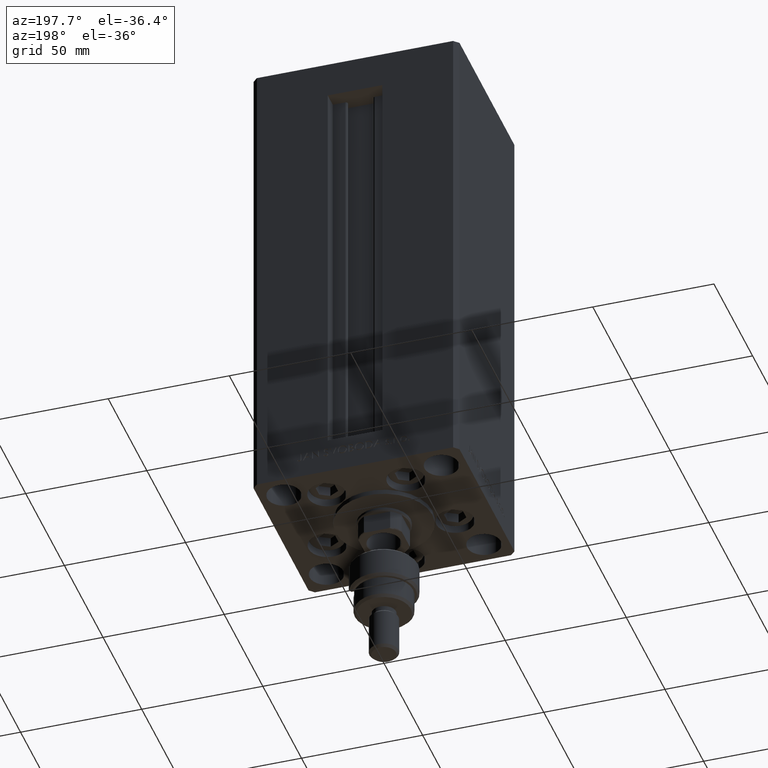
[diagram: clean part render]
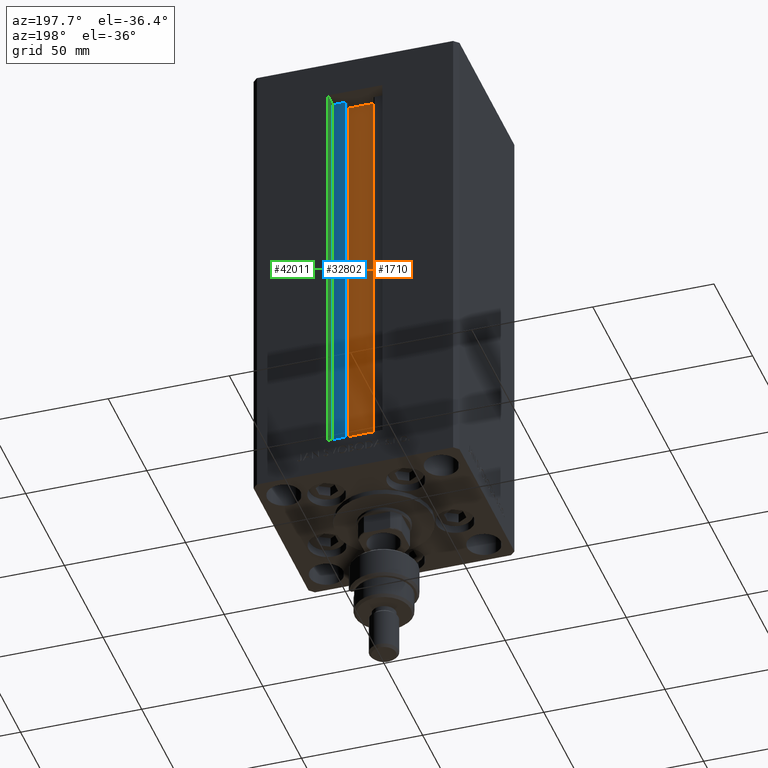
[diagram: same view with three faces highlighted in distinct colors, each labeled with its STEP entity id]
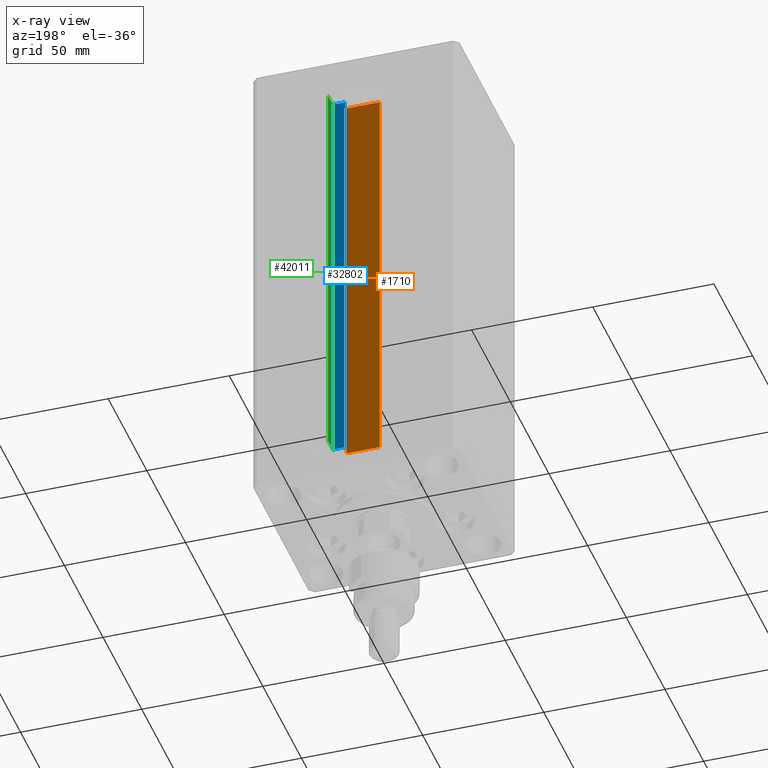
[diagram: x-ray of the same camera — body ghosted, the three highlighted faces saturated]
A machine part, auxiliary view with three faces highlighted in distinct colors.
The next image is the same camera in x-ray (body ghosted, the three faces saturated) — at least one of them is partly hidden behind the body in this view.
Their STEP definitions:

[orange] entity #1710 — the highlighted planar face has unit normal (0, -1, 0).
#17 = DIRECTION ( 'NONE',  ( 0.000000000000000000, -1.000000000000000000, -0.000000000000000000 ) ) ;
#1710 = ADVANCED_FACE ( 'NONE', ( #45937 ), #22978, .F. ) ;
#1740 = CARTESIAN_POINT ( 'NONE',  ( -6.876153656360465938, 26.99999999999986855, 0.000000000000000000 ) ) ;
#3244 = LINE ( 'NONE', #47507, #16710 ) ;
#3381 = VERTEX_POINT ( 'NONE', #42686 ) ;
#3614 = EDGE_CURVE ( 'NONE', #3381, #49777, #25180, .T. ) ;
#4675 = ORIENTED_EDGE ( 'NONE', *, *, #36595, .T. ) ;
#8498 = DIRECTION ( 'NONE',  ( 1.000000000000000000, -0.000000000000000000, -0.000000000000000000 ) ) ;
#8797 = VERTEX_POINT ( 'NONE', #1740 ) ;
#9803 = EDGE_LOOP ( 'NONE', ( #43341, #28689, #4675, #45426 ) ) ;
#10227 = CARTESIAN_POINT ( 'NONE',  ( -6.876153656360465938, 26.99999999999986855, 168.5000000000000000 ) ) ;
#16710 = VECTOR ( 'NONE', #8498, 1000.000000000000000 ) ;
#17803 = CARTESIAN_POINT ( 'NONE',  ( 0.000000000000000000, 26.99999999999986855, 168.5000000000000000 ) ) ;
#18167 = VERTEX_POINT ( 'NONE', #41749 ) ;
#22978 = PLANE ( 'NONE',  #43659 ) ;
#23700 = DIRECTION ( 'NONE',  ( -0.000000000000000000, -0.000000000000000000, 1.000000000000000000 ) ) ;
#24247 = VECTOR ( 'NONE', #41495, 1000.000000000000000 ) ;
#25180 = LINE ( 'NONE', #17803, #24247 ) ;
#28286 = CARTESIAN_POINT ( 'NONE',  ( -6.876153656360465938, 26.99999999999986855, 0.000000000000000000 ) ) ;
#28689 = ORIENTED_EDGE ( 'NONE', *, *, #45183, .F. ) ;
#31346 = CARTESIAN_POINT ( 'NONE',  ( 6.876153656360465938, 26.99999999999986855, 0.000000000000000000 ) ) ;
#31856 = LINE ( 'NONE', #28286, #43268 ) ;
#34192 = DIRECTION ( 'NONE',  ( 0.000000000000000000, 0.000000000000000000, -1.000000000000000000 ) ) ;
#34427 = EDGE_CURVE ( 'NONE', #18167, #3381, #39247, .T. ) ;
#36595 = EDGE_CURVE ( 'NONE', #8797, #49777, #31856, .T. ) ;
#38521 = CARTESIAN_POINT ( 'NONE',  ( 6.876153656360465938, 26.99999999999986855, 0.000000000000000000 ) ) ;
#39000 = DIRECTION ( 'NONE',  ( -0.000000000000000000, -0.000000000000000000, 1.000000000000000000 ) ) ;
#39247 = LINE ( 'NONE', #31346, #48086 ) ;
#41495 = DIRECTION ( 'NONE',  ( -1.000000000000000000, 0.000000000000000000, 0.000000000000000000 ) ) ;
#41749 = CARTESIAN_POINT ( 'NONE',  ( 6.876153656360465938, 26.99999999999986855, 0.000000000000000000 ) ) ;
#42686 = CARTESIAN_POINT ( 'NONE',  ( 6.876153656360465938, 26.99999999999986855, 168.5000000000000000 ) ) ;
#43268 = VECTOR ( 'NONE', #23700, 1000.000000000000000 ) ;
#43341 = ORIENTED_EDGE ( 'NONE', *, *, #34427, .F. ) ;
#43659 = AXIS2_PLACEMENT_3D ( 'NONE', #38521, #17, #34192 ) ;
#45183 = EDGE_CURVE ( 'NONE', #8797, #18167, #3244, .T. ) ;
#45426 = ORIENTED_EDGE ( 'NONE', *, *, #3614, .F. ) ;
#45937 = FACE_OUTER_BOUND ( 'NONE', #9803, .T. ) ;
#47507 = CARTESIAN_POINT ( 'NONE',  ( 6.876153656360465938, 26.99999999999986855, 0.000000000000000000 ) ) ;
#48086 = VECTOR ( 'NONE', #39000, 1000.000000000000000 ) ;
#49777 = VERTEX_POINT ( 'NONE', #10227 ) ;

[blue] entity #32802 — the highlighted planar face has unit normal (0, -1, 0).
#1538 = ORIENTED_EDGE ( 'NONE', *, *, #3638, .T. ) ;
#3100 = VECTOR ( 'NONE', #21375, 1000.000000000000000 ) ;
#3432 = CARTESIAN_POINT ( 'NONE',  ( 6.183333333333999704, 30.99999999999999289, 0.000000000000000000 ) ) ;
#3638 = EDGE_CURVE ( 'NONE', #30700, #5601, #5806, .T. ) ;
#4696 = LINE ( 'NONE', #49957, #13762 ) ;
#5601 = VERTEX_POINT ( 'NONE', #24624 ) ;
#5806 = LINE ( 'NONE', #30008, #3100 ) ;
#6011 = CARTESIAN_POINT ( 'NONE',  ( 6.183333333333999704, 30.99999999999999289, 0.000000000000000000 ) ) ;
#8955 = EDGE_CURVE ( 'NONE', #30700, #50088, #4696, .T. ) ;
#11628 = CARTESIAN_POINT ( 'NONE',  ( 11.25000000000000000, 30.99999999999999289, 168.5000000000000000 ) ) ;
#12346 = LINE ( 'NONE', #39376, #31814 ) ;
#13762 = VECTOR ( 'NONE', #30812, 1000.000000000000000 ) ;
#13879 = EDGE_CURVE ( 'NONE', #50088, #29944, #12346, .T. ) ;
#18487 = DIRECTION ( 'NONE',  ( 0.000000000000000000, -1.000000000000000000, 0.000000000000000000 ) ) ;
#21375 = DIRECTION ( 'NONE',  ( -0.000000000000000000, -0.000000000000000000, 1.000000000000000000 ) ) ;
#21557 = EDGE_LOOP ( 'NONE', ( #36128, #25656, #1538, #33935 ) ) ;
#21819 = PLANE ( 'NONE',  #23609 ) ;
#23145 = CARTESIAN_POINT ( 'NONE',  ( 11.25000000000000000, 30.99999999999999289, 0.000000000000000000 ) ) ;
#23609 = AXIS2_PLACEMENT_3D ( 'NONE', #6011, #18487, #34039 ) ;
#24624 = CARTESIAN_POINT ( 'NONE',  ( 6.183333333333999704, 30.99999999999999289, 168.5000000000000000 ) ) ;
#25656 = ORIENTED_EDGE ( 'NONE', *, *, #8955, .F. ) ;
#29944 = VERTEX_POINT ( 'NONE', #11628 ) ;
#30008 = CARTESIAN_POINT ( 'NONE',  ( 6.183333333333999704, 30.99999999999999289, 0.000000000000000000 ) ) ;
#30700 = VERTEX_POINT ( 'NONE', #3432 ) ;
#30812 = DIRECTION ( 'NONE',  ( 1.000000000000000000, 0.000000000000000000, 0.000000000000000000 ) ) ;
#31814 = VECTOR ( 'NONE', #46800, 1000.000000000000000 ) ;
#32471 = LINE ( 'NONE', #48796, #36248 ) ;
#32802 = ADVANCED_FACE ( 'NONE', ( #36612 ), #21819, .F. ) ;
#33935 = ORIENTED_EDGE ( 'NONE', *, *, #44381, .F. ) ;
#34039 = DIRECTION ( 'NONE',  ( 0.000000000000000000, -0.000000000000000000, -1.000000000000000000 ) ) ;
#36128 = ORIENTED_EDGE ( 'NONE', *, *, #13879, .F. ) ;
#36248 = VECTOR ( 'NONE', #48551, 1000.000000000000000 ) ;
#36612 = FACE_OUTER_BOUND ( 'NONE', #21557, .T. ) ;
#39376 = CARTESIAN_POINT ( 'NONE',  ( 11.25000000000000000, 30.99999999999999289, 0.000000000000000000 ) ) ;
#44381 = EDGE_CURVE ( 'NONE', #29944, #5601, #32471, .T. ) ;
#46800 = DIRECTION ( 'NONE',  ( -0.000000000000000000, -0.000000000000000000, 1.000000000000000000 ) ) ;
#48551 = DIRECTION ( 'NONE',  ( -1.000000000000000000, 0.000000000000000000, 0.000000000000000000 ) ) ;
#48796 = CARTESIAN_POINT ( 'NONE',  ( 0.000000000000000000, 30.99999999999999289, 168.5000000000000000 ) ) ;
#49957 = CARTESIAN_POINT ( 'NONE',  ( 6.183333333333999704, 30.99999999999999289, 0.000000000000000000 ) ) ;
#50088 = VERTEX_POINT ( 'NONE', #23145 ) ;

[green] entity #42011 — the highlighted planar face has unit normal (1, 0, 0).
#5037 = DIRECTION ( 'NONE',  ( -0.000000000000000000, -1.000000000000000000, 0.000000000000000000 ) ) ;
#5095 = EDGE_LOOP ( 'NONE', ( #12313, #47875, #44565, #6938 ) ) ;
#6938 = ORIENTED_EDGE ( 'NONE', *, *, #8095, .F. ) ;
#8095 = EDGE_CURVE ( 'NONE', #32640, #29944, #29006, .T. ) ;
#9899 = VECTOR ( 'NONE', #41406, 1000.000000000000000 ) ;
#11628 = CARTESIAN_POINT ( 'NONE',  ( 11.25000000000000000, 30.99999999999999289, 168.5000000000000000 ) ) ;
#12313 = ORIENTED_EDGE ( 'NONE', *, *, #24251, .F. ) ;
#12346 = LINE ( 'NONE', #39376, #31814 ) ;
#13879 = EDGE_CURVE ( 'NONE', #50088, #29944, #12346, .T. ) ;
#15563 = CARTESIAN_POINT ( 'NONE',  ( 11.25000000000000000, 30.99999999999999289, 0.000000000000000000 ) ) ;
#15958 = EDGE_CURVE ( 'NONE', #50088, #48452, #30688, .T. ) ;
#19806 = VECTOR ( 'NONE', #21426, 1000.000000000000000 ) ;
#21426 = DIRECTION ( 'NONE',  ( -0.000000000000000000, -0.000000000000000000, 1.000000000000000000 ) ) ;
#23145 = CARTESIAN_POINT ( 'NONE',  ( 11.25000000000000000, 30.99999999999999289, 0.000000000000000000 ) ) ;
#23460 = DIRECTION ( 'NONE',  ( 0.000000000000000000, 0.000000000000000000, -1.000000000000000000 ) ) ;
#24251 = EDGE_CURVE ( 'NONE', #48452, #32640, #24722, .T. ) ;
#24722 = LINE ( 'NONE', #36717, #19806 ) ;
#27524 = VECTOR ( 'NONE', #5037, 1000.000000000000000 ) ;
#29006 = LINE ( 'NONE', #47626, #27524 ) ;
#29944 = VERTEX_POINT ( 'NONE', #11628 ) ;
#30620 = PLANE ( 'NONE',  #34542 ) ;
#30688 = LINE ( 'NONE', #34256, #9899 ) ;
#31814 = VECTOR ( 'NONE', #46800, 1000.000000000000000 ) ;
#32640 = VERTEX_POINT ( 'NONE', #45590 ) ;
#34256 = CARTESIAN_POINT ( 'NONE',  ( 11.25000000000000000, 30.99999999999999289, 0.000000000000000000 ) ) ;
#34542 = AXIS2_PLACEMENT_3D ( 'NONE', #15563, #50015, #23460 ) ;
#36717 = CARTESIAN_POINT ( 'NONE',  ( 11.25000000000000000, 37.50000000000000000, 0.000000000000000000 ) ) ;
#39376 = CARTESIAN_POINT ( 'NONE',  ( 11.25000000000000000, 30.99999999999999289, 0.000000000000000000 ) ) ;
#41406 = DIRECTION ( 'NONE',  ( 0.000000000000000000, 1.000000000000000000, 0.000000000000000000 ) ) ;
#42011 = ADVANCED_FACE ( 'NONE', ( #46185 ), #30620, .F. ) ;
#43428 = CARTESIAN_POINT ( 'NONE',  ( 11.25000000000000000, 37.50000000000000000, 0.000000000000000000 ) ) ;
#44565 = ORIENTED_EDGE ( 'NONE', *, *, #13879, .T. ) ;
#45590 = CARTESIAN_POINT ( 'NONE',  ( 11.24999999999999289, 37.50000000000000000, 168.5000000000000000 ) ) ;
#46185 = FACE_OUTER_BOUND ( 'NONE', #5095, .T. ) ;
#46800 = DIRECTION ( 'NONE',  ( -0.000000000000000000, -0.000000000000000000, 1.000000000000000000 ) ) ;
#47626 = CARTESIAN_POINT ( 'NONE',  ( 11.25000000000000000, 0.000000000000000000, 168.5000000000000000 ) ) ;
#47875 = ORIENTED_EDGE ( 'NONE', *, *, #15958, .F. ) ;
#48452 = VERTEX_POINT ( 'NONE', #43428 ) ;
#50015 = DIRECTION ( 'NONE',  ( 1.000000000000000000, -0.000000000000000000, 0.000000000000000000 ) ) ;
#50088 = VERTEX_POINT ( 'NONE', #23145 ) ;